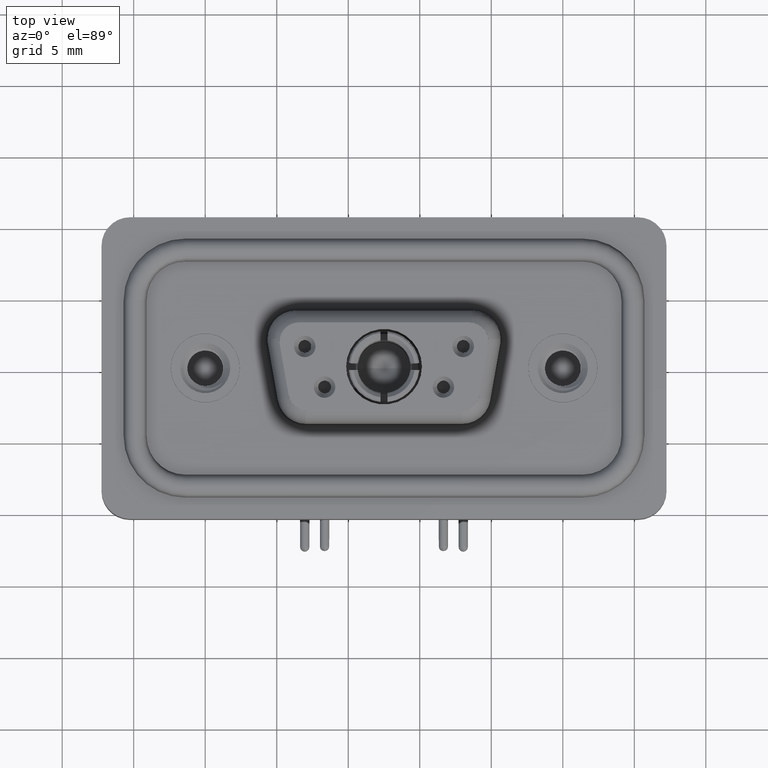
[diagram: clean part render]
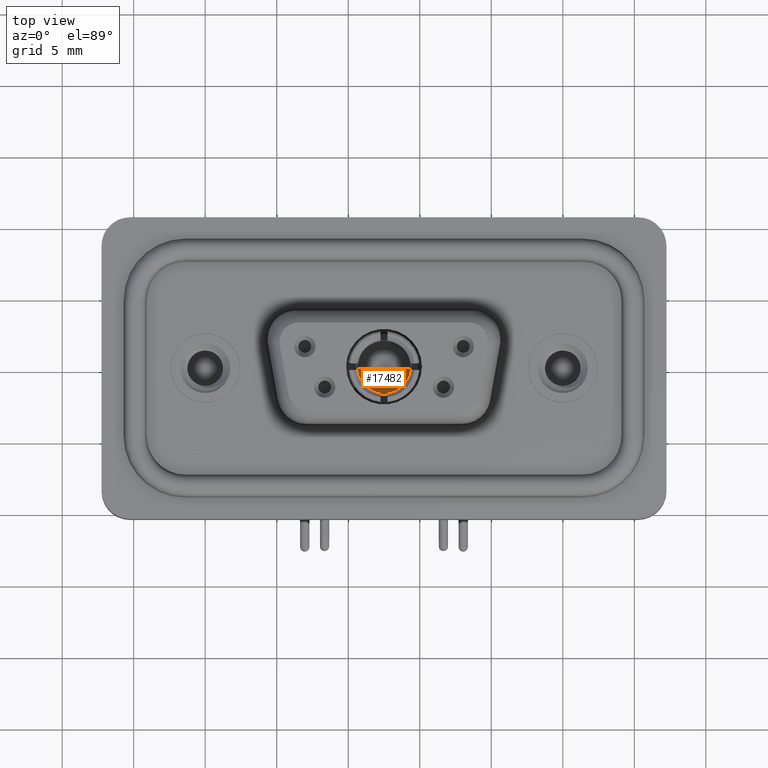
[diagram: same view with one face highlighted and labeled with its STEP entity id]
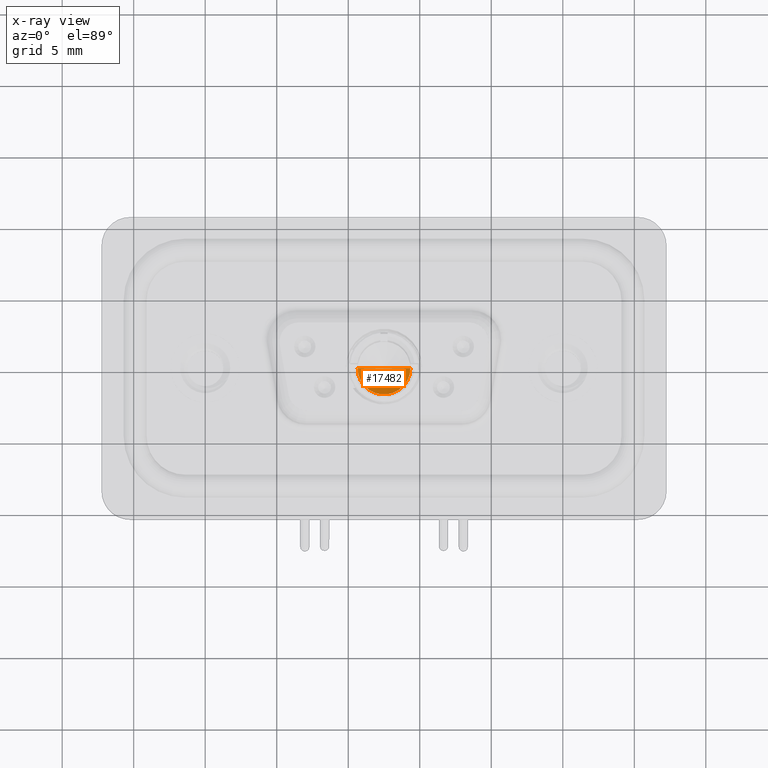
[diagram: x-ray of the same camera — body ghosted, the highlighted face saturated]
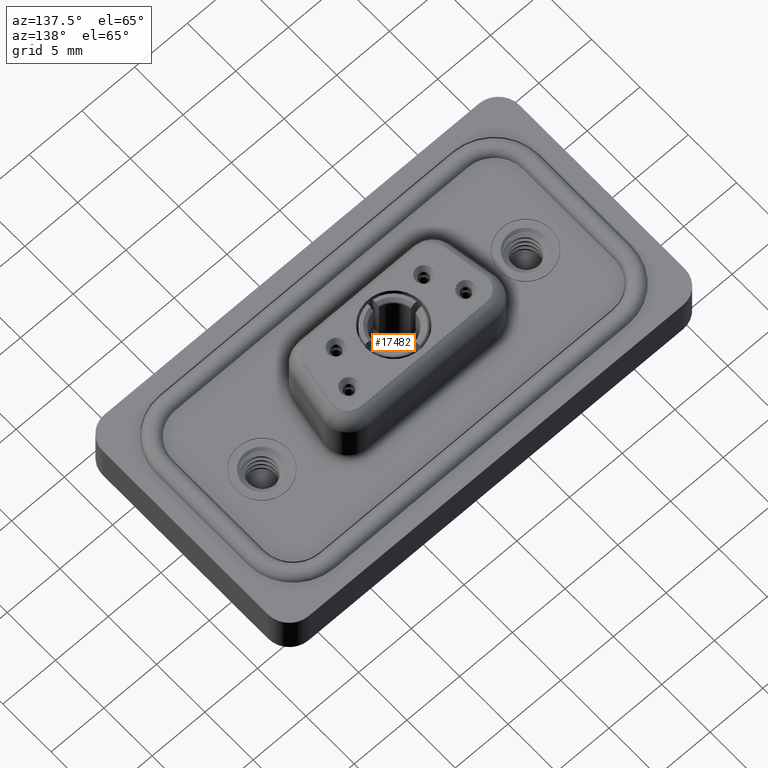
[diagram: same view with one face highlighted and labeled with its STEP entity id]
A machine part, top view. The second image highlights one B-rep face of the part: STEP entity #17482.
The next image is the same camera in x-ray: the body ghosted, the highlighted face saturated — about 0% of this face is hidden behind the body in this view.
A second angle (auxiliary view) of the same face is appended — the face is thin or edge-on in the first view.
In plain terms, the highlighted conical surface has half-angle 59 deg.
Its self-contained STEP definition (entity closure, byte-faithful):
#1266 = DIRECTION ( 'NONE',  ( 1.000000000000000000, 0.000000000000000000, 0.000000000000000000 ) ) ;
#1378 = CARTESIAN_POINT ( 'NONE',  ( 0.000000000000000000, 0.000000000000000000, 7.500000000000000000 ) ) ;
#1448 = VECTOR ( 'NONE', #11967, 1000.000000000000000 ) ;
#1507 = AXIS2_PLACEMENT_3D ( 'NONE', #2963, #9531, #1266 ) ;
#2861 = ORIENTED_EDGE ( 'NONE', *, *, #20489, .T. ) ;
#2963 = CARTESIAN_POINT ( 'NONE',  ( 0.000000000000000000, 0.000000000000000000, 7.500000000000000000 ) ) ;
#3170 = FACE_OUTER_BOUND ( 'NONE', #19868, .T. ) ;
#3643 = LINE ( 'NONE', #11483, #19745 ) ;
#5378 = EDGE_CURVE ( 'NONE', #15785, #5639, #3643, .T. ) ;
#5639 = VERTEX_POINT ( 'NONE', #17113 ) ;
#6560 = ORIENTED_EDGE ( 'NONE', *, *, #20444, .F. ) ;
#9531 = DIRECTION ( 'NONE',  ( -0.000000000000000000, -0.000000000000000000, 1.000000000000000000 ) ) ;
#9536 = DIRECTION ( 'NONE',  ( 1.000000000000000000, 0.000000000000000000, 0.000000000000000000 ) ) ;
#10110 = CARTESIAN_POINT ( 'NONE',  ( 0.000000000000000000, 0.000000000000000000, 6.388407854799018182 ) ) ;
#10454 = ORIENTED_EDGE ( 'NONE', *, *, #5378, .T. ) ;
#11007 = DIRECTION ( 'NONE',  ( -0.000000000000000000, -0.000000000000000000, 1.000000000000000000 ) ) ;
#11483 = CARTESIAN_POINT ( 'NONE',  ( -1.850000000000000089, 2.265596578422603100E-16, 7.500000000000000000 ) ) ;
#11861 = CARTESIAN_POINT ( 'NONE',  ( 1.850000000000000089, 0.000000000000000000, 7.500000000000000000 ) ) ;
#11967 = DIRECTION ( 'NONE',  ( 0.8571673007021134438, 0.000000000000000000, 0.5150380749100522682 ) ) ;
#12170 = LINE ( 'NONE', #11861, #1448 ) ;
#13148 = AXIS2_PLACEMENT_3D ( 'NONE', #1378, #11007, #9536 ) ;
#14489 = CIRCLE ( 'NONE', #13148, 1.850000000000000089 ) ;
#15785 = VERTEX_POINT ( 'NONE', #10110 ) ;
#16496 = DIRECTION ( 'NONE',  ( -0.8571673007021134438, 1.049727191138620051E-16, 0.5150380749100522682 ) ) ;
#16510 = VERTEX_POINT ( 'NONE', #18825 ) ;
#17113 = CARTESIAN_POINT ( 'NONE',  ( -1.850000000000000089, 2.265596578422603100E-16, 7.500000000000000000 ) ) ;
#17222 = CONICAL_SURFACE ( 'NONE', #1507, 1.850000000000000089, 1.029744258676656754 ) ;
#17482 = ADVANCED_FACE ( 'NONE', ( #3170 ), #17222, .F. ) ;
#18825 = CARTESIAN_POINT ( 'NONE',  ( 1.850000000000000089, 0.000000000000000000, 7.500000000000000000 ) ) ;
#19745 = VECTOR ( 'NONE', #16496, 1000.000000000000000 ) ;
#19868 = EDGE_LOOP ( 'NONE', ( #6560, #10454, #2861 ) ) ;
#20444 = EDGE_CURVE ( 'NONE', #15785, #16510, #12170, .T. ) ;
#20489 = EDGE_CURVE ( 'NONE', #5639, #16510, #14489, .T. ) ;